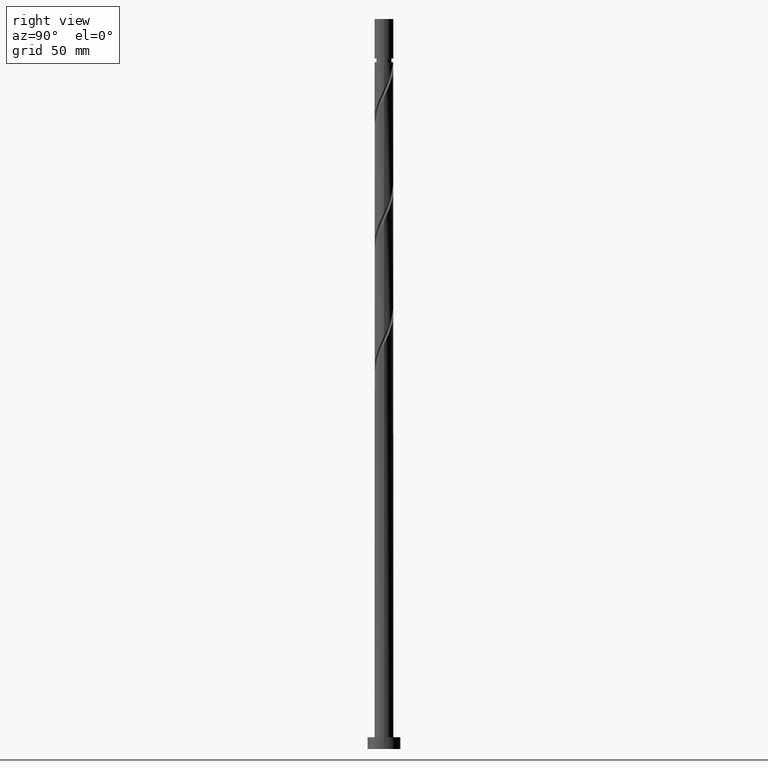
[diagram: clean part render]
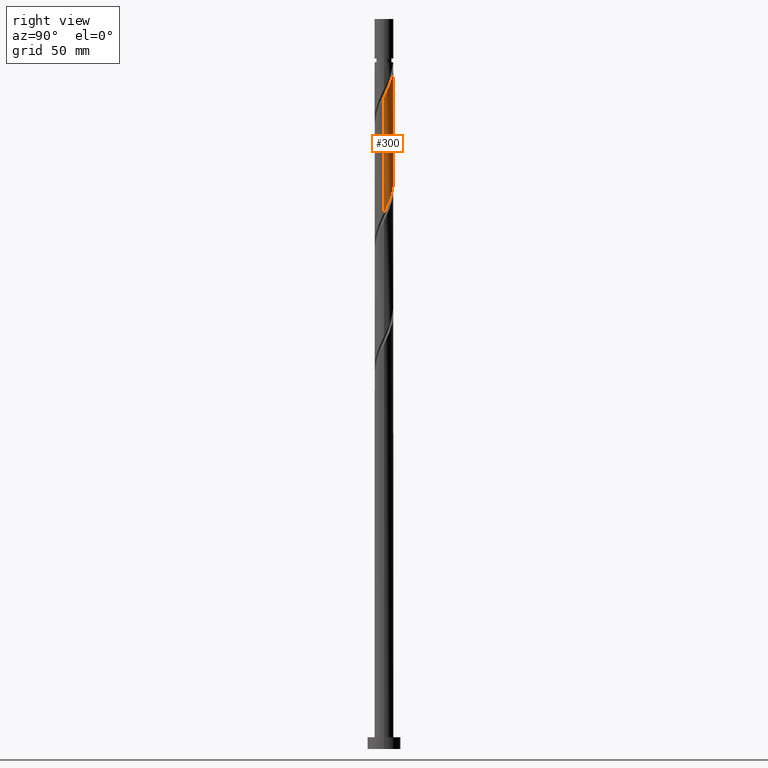
[diagram: same view with one face highlighted and labeled with its STEP entity id]
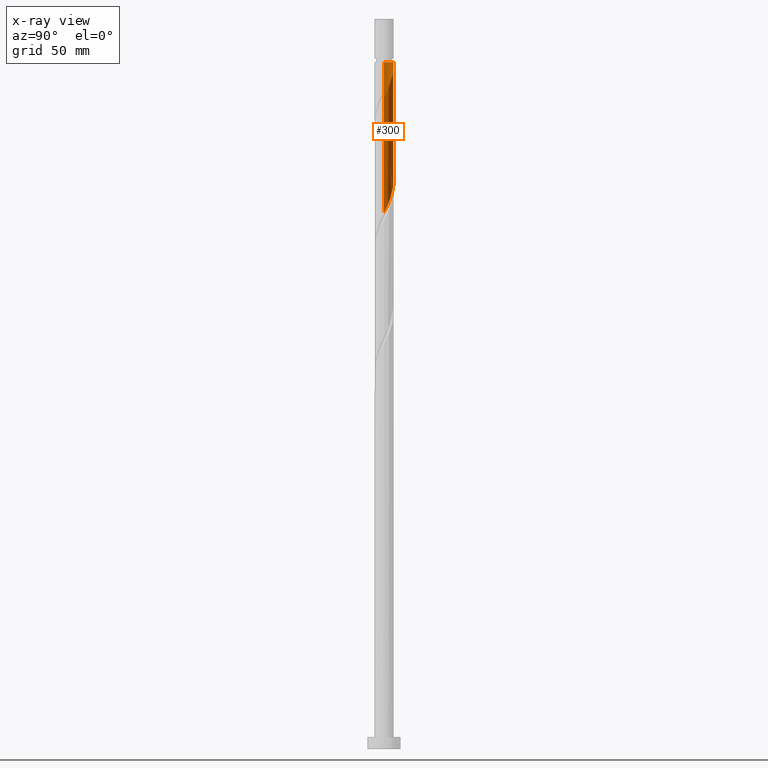
[diagram: x-ray of the same camera — body ghosted, the highlighted face saturated]
A machine part, right view. The second image highlights one B-rep face of the part: STEP entity #300.
The next image is the same camera in x-ray: the body ghosted, the highlighted face saturated — about 0% of this face is hidden behind the body in this view.
In plain terms, the highlighted cylindrical surface (edge-blend (fillet) strip) has radius 4 mm, axis along (-0, -0, -1).
Its self-contained STEP definition (entity closure, byte-faithful):
#5 = CARTESIAN_POINT ( 'NONE',  ( 2.568487795263851847, 3.066410025678347306, 284.1606802537389171 ) ) ;
#20 = CARTESIAN_POINT ( 'NONE',  ( -3.458872505219855675, 2.058961887652576817, 249.4731802537389740 ) ) ;
#26 = DIRECTION ( 'NONE',  ( -0.000000000000000000, -0.000000000000000000, -1.000000000000000000 ) ) ;
#32 = CARTESIAN_POINT ( 'NONE',  ( 0.3543120252768630074, 4.009686527761982866, 240.0981802537389740 ) ) ;
#38 = CARTESIAN_POINT ( 'NONE',  ( 4.000000000000000000, 4.898587196589412829E-16, 310.0000000000000000 ) ) ;
#49 = CARTESIAN_POINT ( 'NONE',  ( -3.830313472238014771, 1.237667874093733245, 251.3481802537388887 ) ) ;
#61 = VERTEX_POINT ( 'NONE', #1042 ) ;
#62 = CARTESIAN_POINT ( 'NONE',  ( 2.777010954688412969, 2.913989227796199177, 234.4731802537389740 ) ) ;
#66 = AXIS2_PLACEMENT_3D ( 'NONE', #1670, #1251, #1819 ) ;
#98 = CARTESIAN_POINT ( 'NONE',  ( 3.987997157791136171, 0.5468105079655612988, 228.8481802537389456 ) ) ;
#128 = CARTESIAN_POINT ( 'NONE',  ( 0.000000000000000000, 0.000000000000000000, 310.0000000000000000 ) ) ;
#143 = LINE ( 'NONE', #748, #1891 ) ;
#144 = CARTESIAN_POINT ( 'NONE',  ( 3.458872505219861448, 2.058961887652578149, 281.3481802537389171 ) ) ;
#153 = CARTESIAN_POINT ( 'NONE',  ( 3.644592988728941219, 1.648314880873156474, 280.4106802537389740 ) ) ;
#175 = ORIENTED_EDGE ( 'NONE', *, *, #1310, .T. ) ;
#206 = CARTESIAN_POINT ( 'NONE',  ( 2.058961887652577261, 3.458872505219854787, 236.3481802537389740 ) ) ;
#238 = CYLINDRICAL_SURFACE ( 'NONE', #244, 4.000000000000000000 ) ;
#244 = AXIS2_PLACEMENT_3D ( 'NONE', #128, #1748, #1301 ) ;
#247 = CARTESIAN_POINT ( 'NONE',  ( -3.999999999999976019, 0.000000000000000000, 291.6606802537389740 ) ) ;
#274 = ORIENTED_EDGE ( 'NONE', *, *, #728, .T. ) ;
#277 = VECTOR ( 'NONE', #26, 1000.000000000000000 ) ;
#300 = ADVANCED_FACE ( 'NONE', ( #1458 ), #238, .T. ) ;
#302 = CARTESIAN_POINT ( 'NONE',  ( 0.09624924134435140777, 3.998841842776565958, 289.7856802537390308 ) ) ;
#329 = CARTESIAN_POINT ( 'NONE',  ( -3.999999999999999112, 7.156908403571792636E-15, 253.9601973316449914 ) ) ;
#341 = CARTESIAN_POINT ( 'NONE',  ( -1.821750020894125521, 3.561071027285505952, 244.7856802537389456 ) ) ;
#382 = CARTESIAN_POINT ( 'NONE',  ( 3.999999999999999112, 0.04813158866555360821, 227.8105600198701097 ) ) ;
#448 = CARTESIAN_POINT ( 'NONE',  ( 1.420513679056762957, 3.766332957902740475, 286.9731802537390877 ) ) ;
#456 = DIRECTION ( 'NONE',  ( -0.000000000000000000, -0.000000000000000000, -1.000000000000000000 ) ) ;
#457 = CARTESIAN_POINT ( 'NONE',  ( 3.920000000000005258, 0.7959899496852977929, 278.5356802537389740 ) ) ;
#462 = CARTESIAN_POINT ( 'NONE',  ( -3.999999999999999112, 0.4020151261036840618, 253.1219262526813623 ) ) ;
#478 = LINE ( 'NONE', #38, #277 ) ;
#516 = EDGE_CURVE ( 'NONE', #61, #1530, #1187, .T. ) ;
#595 = CARTESIAN_POINT ( 'NONE',  ( 3.186430866508034754, 2.417986421170496669, 282.2856802537389740 ) ) ;
#602 = CARTESIAN_POINT ( 'NONE',  ( -0.7959899496836739807, 3.919999999984013606, 291.6606802537386898 ) ) ;
#606 = CARTESIAN_POINT ( 'NONE',  ( -3.999999999999999112, 7.156908403571792636E-15, 253.9601973316449914 ) ) ;
#611 = CARTESIAN_POINT ( 'NONE',  ( 2.913989227796204950, 2.777010954688415634, 283.2231802537389740 ) ) ;
#617 = CARTESIAN_POINT ( 'NONE',  ( -0.5468105079655622980, 3.987997157791136171, 241.9731802537389740 ) ) ;
#643 = CARTESIAN_POINT ( 'NONE',  ( -2.568487795263846518, 3.066410025678343754, 246.6606802537389740 ) ) ;
#728 = EDGE_CURVE ( 'NONE', #852, #1530, #937, .T. ) ;
#741 = CARTESIAN_POINT ( 'NONE',  ( 1.821750020894129518, 3.561071027285510837, 286.0356802537389740 ) ) ;
#748 = CARTESIAN_POINT ( 'NONE',  ( -4.000000000000000000, 0.000000000000000000, 310.0000000000000000 ) ) ;
#749 = CARTESIAN_POINT ( 'NONE',  ( 0.5468105079655646295, 3.987997157791141500, 288.8481802537389171 ) ) ;
#763 = CARTESIAN_POINT ( 'NONE',  ( -1.420513679056759626, 3.766332957902735590, 243.8481802537389740 ) ) ;
#774 = ORIENTED_EDGE ( 'NONE', *, *, #516, .F. ) ;
#803 = CARTESIAN_POINT ( 'NONE',  ( 2.417986421170494893, 3.186430866508027648, 235.4106802537389456 ) ) ;
#810 = CARTESIAN_POINT ( 'NONE',  ( -0.7959899496836739807, 3.919999999984013606, 291.6606802537386898 ) ) ;
#832 = CARTESIAN_POINT ( 'NONE',  ( 3.561071027285505952, 1.821750020894124855, 231.6606802537389171 ) ) ;
#839 = CARTESIAN_POINT ( 'NONE',  ( 3.877165057846936769, 0.9836620935111599628, 229.7856802537389740 ) ) ;
#852 = VERTEX_POINT ( 'NONE', #247 ) ;
#912 = CARTESIAN_POINT ( 'NONE',  ( 0.9836620935111639596, 3.877165057846941654, 287.9106802537389740 ) ) ;
#917 = CARTESIAN_POINT ( 'NONE',  ( -3.644592988728935445, 1.648314880873155142, 250.4106802537388887 ) ) ;
#925 = EDGE_LOOP ( 'NONE', ( #774, #175, #1152, #953, #274 ) ) ;
#927 = CARTESIAN_POINT ( 'NONE',  ( -3.919999999999999041, 0.7959899496852982370, 252.2856802537389171 ) ) ;
#937 = CIRCLE ( 'NONE', #66, 3.999999999999976019 ) ;
#940 = CARTESIAN_POINT ( 'NONE',  ( -0.09624924134434953427, 3.998841842776559741, 241.0356802537390024 ) ) ;
#953 = ORIENTED_EDGE ( 'NONE', *, *, #1151, .F. ) ;
#954 = CARTESIAN_POINT ( 'NONE',  ( -0.9836620935111607400, 3.877165057846935436, 242.9106802537388887 ) ) ;
#1042 = CARTESIAN_POINT ( 'NONE',  ( 4.000000000000005329, 2.238866028228908593E-17, 276.8611631758329281 ) ) ;
#1065 = CARTESIAN_POINT ( 'NONE',  ( -3.186430866508028092, 2.417986421170494449, 248.5356802537389740 ) ) ;
#1070 = CARTESIAN_POINT ( 'NONE',  ( 4.000000000000005329, 2.238866028228908593E-17, 276.8611631758329281 ) ) ;
#1133 = CARTESIAN_POINT ( 'NONE',  ( 3.066410025678344198, 2.568487795263845186, 233.5356802537390024 ) ) ;
#1141 = CARTESIAN_POINT ( 'NONE',  ( 3.766332957902735590, 1.420513679056758516, 230.7231802537389171 ) ) ;
#1151 = EDGE_CURVE ( 'NONE', #852, #1726, #143, .T. ) ;
#1152 = ORIENTED_EDGE ( 'NONE', *, *, #1743, .F. ) ;
#1187 =( BOUNDED_CURVE ( )  B_SPLINE_CURVE ( 2, ( #1070, #1772, #457, #1630, #153, #144, #595, #611, #5, #1188, #741, #448, #912, #749, #302, #1349, #602 ),
 .UNSPECIFIED., .F., .T. ) 
 B_SPLINE_CURVE_WITH_KNOTS ( ( 3, 2, 2, 2, 2, 2, 2, 2, 3 ),
 ( 0.6795303401299219725, 0.6875000000000000000, 0.6964285714285712858, 0.7053571428571426827, 0.7142857142857141906, 0.7232142857142854764, 0.7321428571428569843, 0.7410714285714282701, 0.7499999999999996669 ),
 .UNSPECIFIED. ) 
 CURVE ( )  GEOMETRIC_REPRESENTATION_ITEM ( )  RATIONAL_B_SPLINE_CURVE ( ( 0.9079949616362096299, 0.9039886423360725676, 0.9090909090909393697, 0.9033747362666143532, 0.9090909090909393697, 0.9033747362666143532, 0.9090909090909393697, 0.9033747362666143532, 0.9090909090909393697, 0.9033747362666143532, 0.9090909090909393697, 0.9033747362666143532, 0.9090909090909393697, 0.9033747362666143532, 0.9090909090909393697, 0.9033747362666144642, 0.9090909090909392587 ) ) 
 REPRESENTATION_ITEM ( '' )  );
#1188 = CARTESIAN_POINT ( 'NONE',  ( 2.222986362731496524, 3.355809096668280755, 285.0981802537389740 ) ) ;
#1232 = CARTESIAN_POINT ( 'NONE',  ( 1.237667874093734133, 3.830313472238014771, 238.2231802537389740 ) ) ;
#1246 = CARTESIAN_POINT ( 'NONE',  ( -2.222986362731492527, 3.355809096668277203, 245.7231802537389740 ) ) ;
#1251 = DIRECTION ( 'NONE',  ( -0.000000000000000000, -0.000000000000000000, -1.000000000000000000 ) ) ;
#1294 = CARTESIAN_POINT ( 'NONE',  ( 3.998841842776559741, 0.09624924134434886813, 227.9106802537389740 ) ) ;
#1301 = DIRECTION ( 'NONE',  ( -1.000000000000000000, 0.000000000000000000, 0.000000000000000000 ) ) ;
#1310 = EDGE_CURVE ( 'NONE', #61, #1468, #478, .T. ) ;
#1349 = CARTESIAN_POINT ( 'NONE',  ( -0.3543120252768452438, 4.009686527761989971, 290.7231802537389740 ) ) ;
#1447 =( BOUNDED_CURVE ( )  B_SPLINE_CURVE ( 2, ( #329, #462, #927, #49, #917, #20, #1065, #1654, #643, #1246, #341, #763, #954, #617, #940, #32, #1828, #1232, #1545, #206, #803, #62, #1133, #1555, #832, #1141, #839, #98, #1294, #382, #1581 ),
 .UNSPECIFIED., .F., .T. ) 
 B_SPLINE_CURVE_WITH_KNOTS ( ( 3, 2, 2, 2, 2, 2, 2, 2, 2, 2, 2, 2, 2, 2, 2, 3 ),
 ( 0.4295303401299219725, 0.4375000000000000000, 0.4464285714285714524, 0.4553571428571428492, 0.4642857142857143016, 0.4732142857142856984, 0.4821428571428571508, 0.4910714285714285476, 0.5000000000000000000, 0.5089285714285713969, 0.5178571428571429047, 0.5267857142857143016, 0.5357142857142856984, 0.5446428571428570953, 0.5535714285714286031, 0.5545303401299221946 ),
 .UNSPECIFIED. ) 
 CURVE ( )  GEOMETRIC_REPRESENTATION_ITEM ( )  RATIONAL_B_SPLINE_CURVE ( ( 0.9079949616362036346, 0.9039886423360665724, 0.9090909090909334855, 0.9033747362666083580, 0.9090909090909334855, 0.9033747362666083580, 0.9090909090909334855, 0.9033747362666083580, 0.9090909090909334855, 0.9033747362666083580, 0.9090909090909334855, 0.9033747362666083580, 0.9090909090909334855, 0.9033747362666083580, 0.9090909090909334855, 0.9033747362666083580, 0.9090909090909334855, 0.9033747362666083580, 0.9090909090909334855, 0.9033747362666083580, 0.9090909090909334855, 0.9033747362666083580, 0.9090909090909334855, 0.9033747362666083580, 0.9090909090909334855, 0.9033747362666083580, 0.9090909090909334855, 0.9033747362666083580, 0.9090909090909334855, 0.9084770030214751602, 0.9079949616362034126 ) ) 
 REPRESENTATION_ITEM ( '' )  );
#1458 = FACE_OUTER_BOUND ( 'NONE', #925, .T. ) ;
#1468 = VERTEX_POINT ( 'NONE', #1847 ) ;
#1530 = VERTEX_POINT ( 'NONE', #810 ) ;
#1545 = CARTESIAN_POINT ( 'NONE',  ( 1.648314880873155586, 3.644592988728935001, 237.2856802537389456 ) ) ;
#1555 = CARTESIAN_POINT ( 'NONE',  ( 3.355809096668277203, 2.222986362731491639, 232.5981802537390308 ) ) ;
#1581 = CARTESIAN_POINT ( 'NONE',  ( 3.999999999999998224, -2.634399026549366747E-15, 227.7101973316449914 ) ) ;
#1630 = CARTESIAN_POINT ( 'NONE',  ( 3.830313472238021433, 1.237667874093733911, 279.4731802537389740 ) ) ;
#1654 = CARTESIAN_POINT ( 'NONE',  ( -2.913989227796199621, 2.777010954688412081, 247.5981802537389171 ) ) ;
#1670 = CARTESIAN_POINT ( 'NONE',  ( 0.000000000000000000, 0.000000000000000000, 291.6606802537389740 ) ) ;
#1726 = VERTEX_POINT ( 'NONE', #606 ) ;
#1743 = EDGE_CURVE ( 'NONE', #1726, #1468, #1447, .T. ) ;
#1748 = DIRECTION ( 'NONE',  ( -0.000000000000000000, -0.000000000000000000, -1.000000000000000000 ) ) ;
#1772 = CARTESIAN_POINT ( 'NONE',  ( 4.000000000000006217, 0.4020151261036807311, 277.6994342547964720 ) ) ;
#1819 = DIRECTION ( 'NONE',  ( -1.000000000000000000, 0.000000000000000000, 0.000000000000000000 ) ) ;
#1828 = CARTESIAN_POINT ( 'NONE',  ( 0.7959899496852991252, 3.919999999999999041, 239.1606802537389740 ) ) ;
#1847 = CARTESIAN_POINT ( 'NONE',  ( 3.999999999999998224, -2.634399026549366747E-15, 227.7101973316449914 ) ) ;
#1891 = VECTOR ( 'NONE', #456, 1000.000000000000000 ) ;